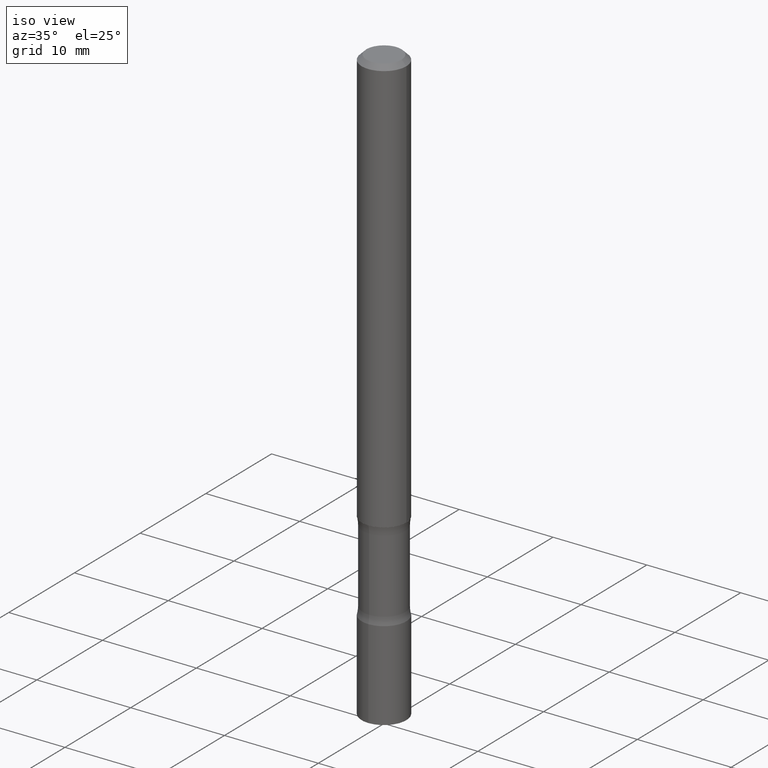
[diagram: clean part render]
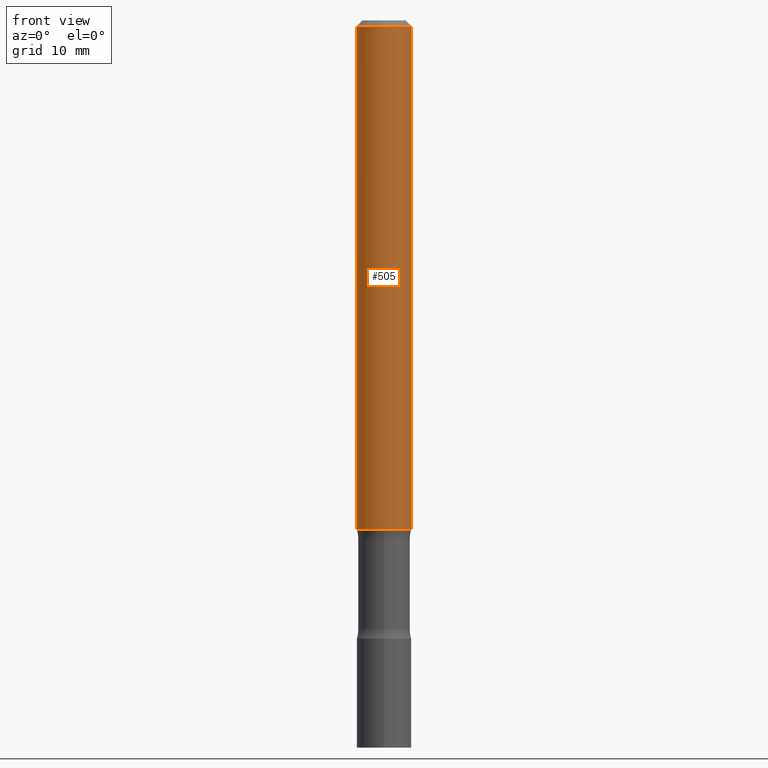
[diagram: tour spotlight — one face highlighted and labeled with its STEP entity id]
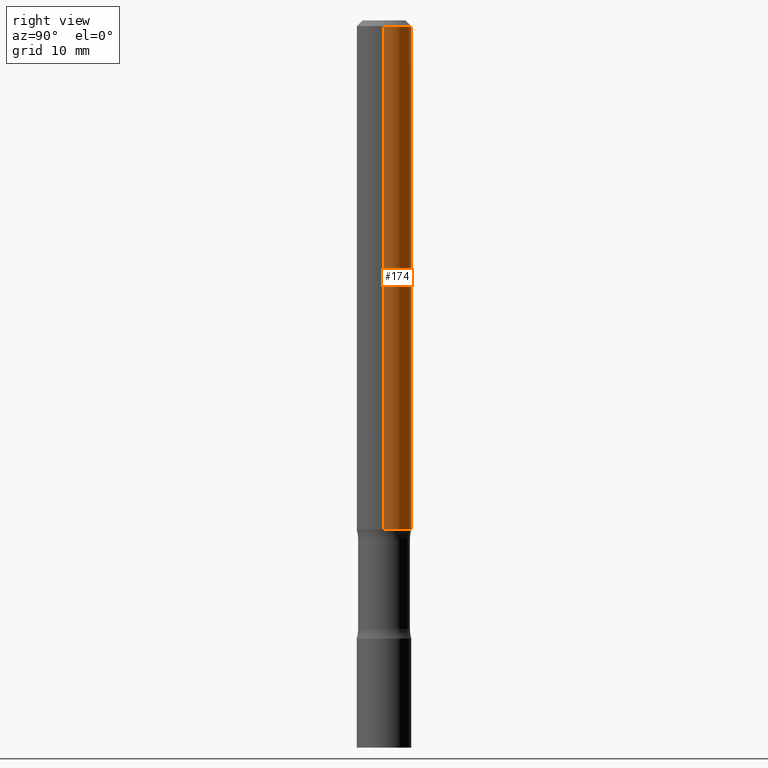
[diagram: tour spotlight — one face highlighted and labeled with its STEP entity id]
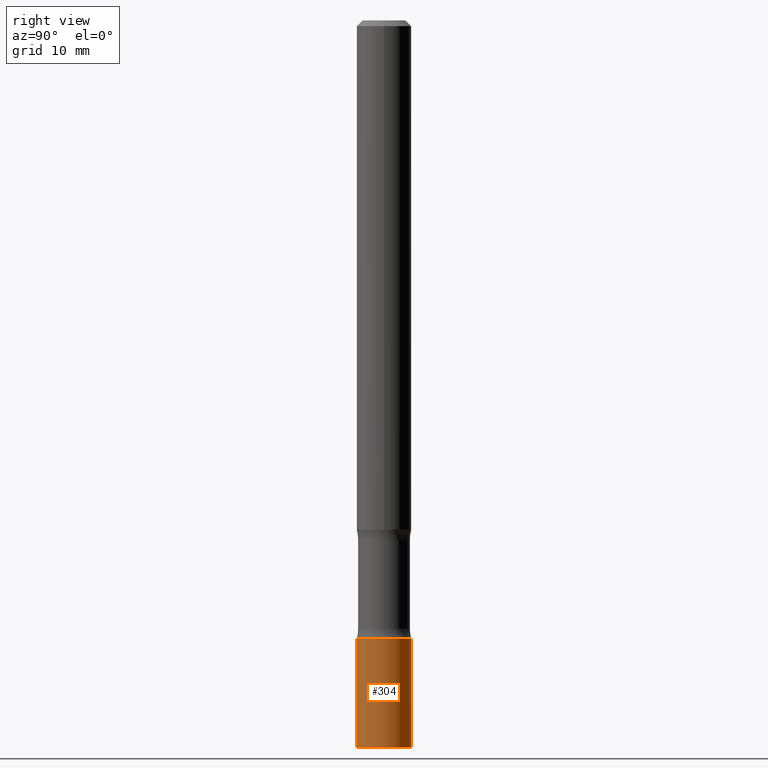
[diagram: tour spotlight — one face highlighted and labeled with its STEP entity id]
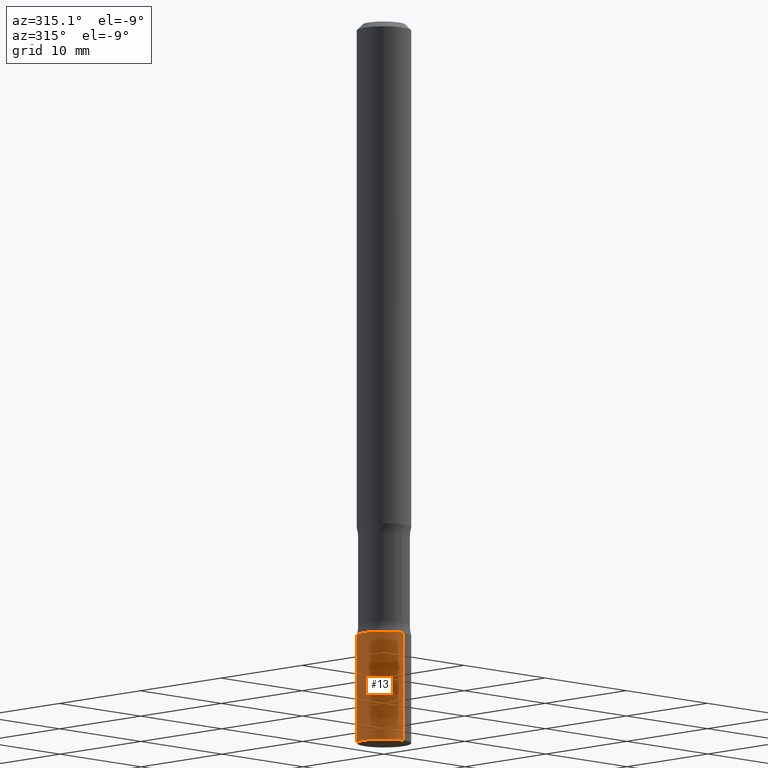
[diagram: tour spotlight — one face highlighted and labeled with its STEP entity id]
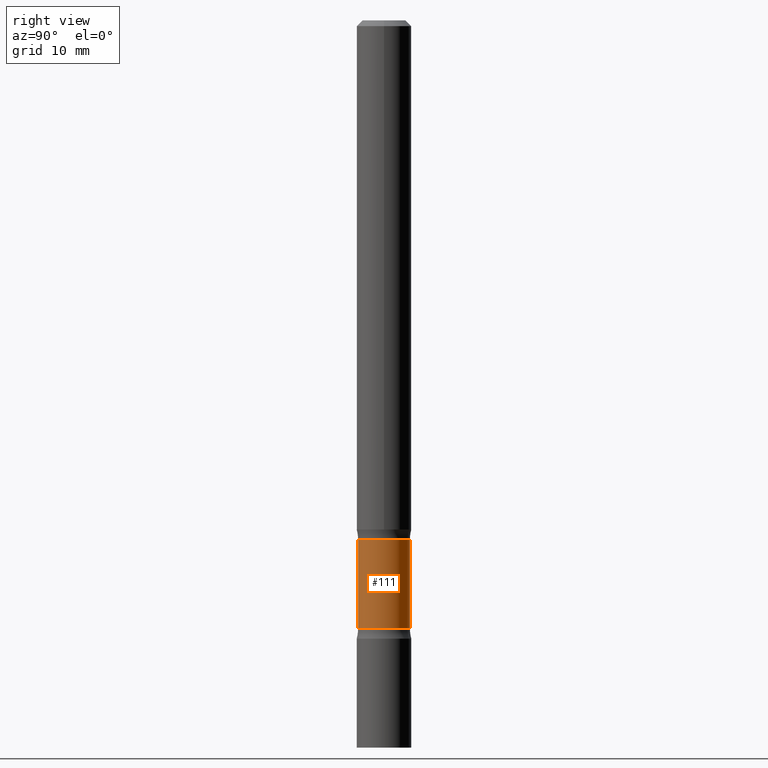
[diagram: tour spotlight — one face highlighted and labeled with its STEP entity id]
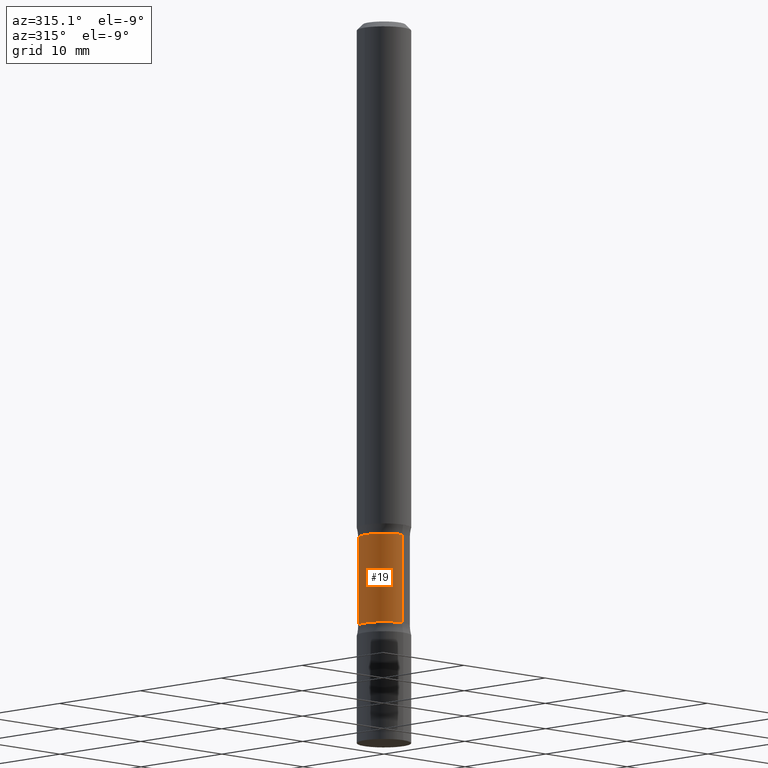
[diagram: tour spotlight — one face highlighted and labeled with its STEP entity id]
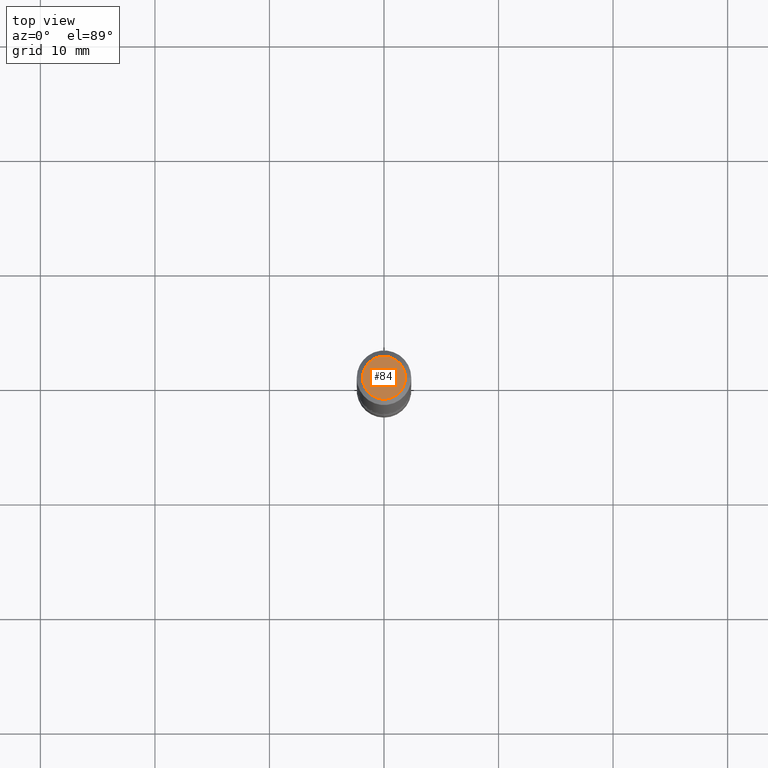
[diagram: tour spotlight — one face highlighted and labeled with its STEP entity id]
A machine part: a face-by-face anatomy tour. The part has 18 B-rep faces; the first image is the clean iso view, then the 7 largest visible faces are spotlighted one at a time (largest first), each with its STEP entity span.

Face 1 — front view, entity #505. In plain terms, the highlighted cylindrical surface (edge-blend (fillet) strip) has radius 2.3812 mm, axis along (-0, 0, 1).
Definition (entity closure, byte-faithful):
#40 = DIRECTION ( 'NONE',  ( 1.000000000000000000, -6.982962677686266711E-15, 0.000000000000000000 ) ) ;
#63 = VERTEX_POINT ( 'NONE', #481 ) ;
#72 = DIRECTION ( 'NONE',  ( -2.445468806185136597E-29, 3.491481338843145583E-15, 1.000000000000000000 ) ) ;
#76 = AXIS2_PLACEMENT_3D ( 'NONE', #502, #242, #40 ) ;
#113 = VECTOR ( 'NONE', #398, 39.37007874015748143 ) ;
#114 = CARTESIAN_POINT ( 'NONE',  ( 0.000000000000000000, 0.000000000000000000, 0.000000000000000000 ) ) ;
#124 = EDGE_CURVE ( 'NONE', #437, #256, #400, .T. ) ;
#129 = DIRECTION ( 'NONE',  ( -2.445468806185136597E-29, 3.491481338843145583E-15, 1.000000000000000000 ) ) ;
#150 = CARTESIAN_POINT ( 'NONE',  ( -0.09374999999999979183, 5.848231242562231212E-16, -0.02000000000000000042 ) ) ;
#172 = DIRECTION ( 'NONE',  ( 1.000000000000000000, -6.982962677686261189E-15, 0.000000000000000000 ) ) ;
#195 = DIRECTION ( 'NONE',  ( -2.445468806185136877E-29, 3.491481338843145188E-15, 1.000000000000000000 ) ) ;
#205 = CARTESIAN_POINT ( 'NONE',  ( 4.279570410823988484E-29, -6.110092342975504671E-15, -1.750000000000000000 ) ) ;
#222 = CIRCLE ( 'NONE', #401, 0.09375000000000001388 ) ;
#242 = DIRECTION ( 'NONE',  ( -2.445468806185136597E-29, 3.491481338843145583E-15, 1.000000000000000000 ) ) ;
#246 = EDGE_LOOP ( 'NONE', ( #296, #396, #360, #255 ) ) ;
#255 = ORIENTED_EDGE ( 'NONE', *, *, #340, .F. ) ;
#256 = VERTEX_POINT ( 'NONE', #150 ) ;
#264 = VERTEX_POINT ( 'NONE', #491 ) ;
#287 = CARTESIAN_POINT ( 'NONE',  ( 0.09374999999999988898, -6.546527510330866166E-16, 4.571415727308684201E-30 ) ) ;
#296 = ORIENTED_EDGE ( 'NONE', *, *, #124, .F. ) ;
#306 = AXIS2_PLACEMENT_3D ( 'NONE', #114, #72, #379 ) ;
#323 = LINE ( 'NONE', #287, #113 ) ;
#340 = EDGE_CURVE ( 'NONE', #256, #264, #462, .T. ) ;
#360 = ORIENTED_EDGE ( 'NONE', *, *, #377, .T. ) ;
#370 = EDGE_CURVE ( 'NONE', #437, #63, #222, .T. ) ;
#377 = EDGE_CURVE ( 'NONE', #63, #264, #323, .T. ) ;
#379 = DIRECTION ( 'NONE',  ( 1.000000000000000000, -6.982962677686265133E-15, 4.876176775795935793E-29 ) ) ;
#380 = CARTESIAN_POINT ( 'NONE',  ( -0.09374999999999988898, 6.661338147750931354E-16, -4.611501647113968390E-30 ) ) ;
#396 = ORIENTED_EDGE ( 'NONE', *, *, #370, .T. ) ;
#398 = DIRECTION ( 'NONE',  ( -2.445468806185136877E-29, 3.491481338843145188E-15, 1.000000000000000000 ) ) ;
#400 = LINE ( 'NONE', #380, #433 ) ;
#401 = AXIS2_PLACEMENT_3D ( 'NONE', #205, #129, #172 ) ;
#433 = VECTOR ( 'NONE', #195, 39.37007874015748143 ) ;
#437 = VERTEX_POINT ( 'NONE', #469 ) ;
#462 = CIRCLE ( 'NONE', #76, 0.09374999999999979183 ) ;
#463 = CYLINDRICAL_SURFACE ( 'NONE', #306, 0.09374999999999988898 ) ;
#469 = CARTESIAN_POINT ( 'NONE',  ( -0.09375000000000001388, -2.423827170101085722E-15, -1.750000000000000000 ) ) ;
#481 = CARTESIAN_POINT ( 'NONE',  ( 0.09375000000000001388, -6.764745094008591386E-15, -1.750000000000000000 ) ) ;
#491 = CARTESIAN_POINT ( 'NONE',  ( 0.09374999999999979183, -7.130013140679426072E-16, -0.02000000000000000042 ) ) ;
#497 = FACE_OUTER_BOUND ( 'NONE', #246, .T. ) ;
#502 = CARTESIAN_POINT ( 'NONE',  ( 4.890937612370273159E-31, -6.982962677686291609E-17, -0.02000000000000000042 ) ) ;
#505 = ADVANCED_FACE ( 'NONE', ( #497 ), #463, .T. ) ;

Face 2 — right view, entity #174. In plain terms, the highlighted cylindrical surface (edge-blend (fillet) strip) has radius 2.3812 mm, axis along (-0, 0, 1).
Definition (entity closure, byte-faithful):
#14 = DIRECTION ( 'NONE',  ( 1.000000000000000000, -6.982962677686261189E-15, 0.000000000000000000 ) ) ;
#16 = CARTESIAN_POINT ( 'NONE',  ( 4.279570410823988484E-29, -6.110092342975504671E-15, -1.750000000000000000 ) ) ;
#31 = CIRCLE ( 'NONE', #289, 0.09375000000000001388 ) ;
#53 = DIRECTION ( 'NONE',  ( -2.445468806185136597E-29, 3.491481338843145583E-15, 1.000000000000000000 ) ) ;
#63 = VERTEX_POINT ( 'NONE', #481 ) ;
#78 = EDGE_CURVE ( 'NONE', #63, #437, #31, .T. ) ;
#102 = CARTESIAN_POINT ( 'NONE',  ( 0.000000000000000000, 0.000000000000000000, 0.000000000000000000 ) ) ;
#113 = VECTOR ( 'NONE', #398, 39.37007874015748143 ) ;
#124 = EDGE_CURVE ( 'NONE', #437, #256, #400, .T. ) ;
#145 = ORIENTED_EDGE ( 'NONE', *, *, #124, .T. ) ;
#150 = CARTESIAN_POINT ( 'NONE',  ( -0.09374999999999979183, 5.848231242562231212E-16, -0.02000000000000000042 ) ) ;
#174 = ADVANCED_FACE ( 'NONE', ( #297 ), #371, .T. ) ;
#195 = DIRECTION ( 'NONE',  ( -2.445468806185136877E-29, 3.491481338843145188E-15, 1.000000000000000000 ) ) ;
#211 = AXIS2_PLACEMENT_3D ( 'NONE', #419, #339, #347 ) ;
#256 = VERTEX_POINT ( 'NONE', #150 ) ;
#264 = VERTEX_POINT ( 'NONE', #491 ) ;
#271 = DIRECTION ( 'NONE',  ( 1.000000000000000000, -6.982962677686265133E-15, 4.876176775795935793E-29 ) ) ;
#281 = CIRCLE ( 'NONE', #211, 0.09374999999999979183 ) ;
#287 = CARTESIAN_POINT ( 'NONE',  ( 0.09374999999999988898, -6.546527510330866166E-16, 4.571415727308684201E-30 ) ) ;
#289 = AXIS2_PLACEMENT_3D ( 'NONE', #16, #53, #14 ) ;
#294 = ORIENTED_EDGE ( 'NONE', *, *, #78, .T. ) ;
#297 = FACE_OUTER_BOUND ( 'NONE', #412, .T. ) ;
#302 = DIRECTION ( 'NONE',  ( -2.445468806185136597E-29, 3.491481338843145583E-15, 1.000000000000000000 ) ) ;
#323 = LINE ( 'NONE', #287, #113 ) ;
#339 = DIRECTION ( 'NONE',  ( -2.445468806185136597E-29, 3.491481338843145583E-15, 1.000000000000000000 ) ) ;
#347 = DIRECTION ( 'NONE',  ( 1.000000000000000000, -6.982962677686266711E-15, 0.000000000000000000 ) ) ;
#371 = CYLINDRICAL_SURFACE ( 'NONE', #476, 0.09374999999999988898 ) ;
#377 = EDGE_CURVE ( 'NONE', #63, #264, #323, .T. ) ;
#380 = CARTESIAN_POINT ( 'NONE',  ( -0.09374999999999988898, 6.661338147750931354E-16, -4.611501647113968390E-30 ) ) ;
#398 = DIRECTION ( 'NONE',  ( -2.445468806185136877E-29, 3.491481338843145188E-15, 1.000000000000000000 ) ) ;
#400 = LINE ( 'NONE', #380, #433 ) ;
#412 = EDGE_LOOP ( 'NONE', ( #294, #145, #456, #459 ) ) ;
#419 = CARTESIAN_POINT ( 'NONE',  ( 4.890937612370273159E-31, -6.982962677686291609E-17, -0.02000000000000000042 ) ) ;
#433 = VECTOR ( 'NONE', #195, 39.37007874015748143 ) ;
#437 = VERTEX_POINT ( 'NONE', #469 ) ;
#456 = ORIENTED_EDGE ( 'NONE', *, *, #493, .F. ) ;
#459 = ORIENTED_EDGE ( 'NONE', *, *, #377, .F. ) ;
#469 = CARTESIAN_POINT ( 'NONE',  ( -0.09375000000000001388, -2.423827170101085722E-15, -1.750000000000000000 ) ) ;
#476 = AXIS2_PLACEMENT_3D ( 'NONE', #102, #302, #271 ) ;
#481 = CARTESIAN_POINT ( 'NONE',  ( 0.09375000000000001388, -6.764745094008591386E-15, -1.750000000000000000 ) ) ;
#491 = CARTESIAN_POINT ( 'NONE',  ( 0.09374999999999979183, -7.130013140679426072E-16, -0.02000000000000000042 ) ) ;
#493 = EDGE_CURVE ( 'NONE', #264, #256, #281, .T. ) ;

Face 3 — right view, entity #304. In plain terms, the highlighted cylindrical surface (edge-blend (fillet) strip) has radius 2.3813 mm, axis along (-0, 0, 1).
Definition (entity closure, byte-faithful):
#5 = AXIS2_PLACEMENT_3D ( 'NONE', #372, #20, #189 ) ;
#20 = DIRECTION ( 'NONE',  ( -2.445335353247201709E-29, 3.491672451045937805E-15, 1.000000000000000000 ) ) ;
#27 = DIRECTION ( 'NONE',  ( -6.982962677686265922E-15, -1.000000000000000000, 2.913971193241880372E-15 ) ) ;
#30 = CARTESIAN_POINT ( 'NONE',  ( 6.661338147750938256E-16, 0.09375000000000001388, -3.273442922855567185E-16 ) ) ;
#48 = CIRCLE ( 'NONE', #425, 0.09375000000000001388 ) ;
#56 = VECTOR ( 'NONE', #427, 39.37007874015748143 ) ;
#58 = VERTEX_POINT ( 'NONE', #329 ) ;
#62 = CARTESIAN_POINT ( 'NONE',  ( 5.196337625650303527E-29, -7.419803958472619019E-15, -2.125000000000000000 ) ) ;
#82 = AXIS2_PLACEMENT_3D ( 'NONE', #62, #110, #27 ) ;
#83 = CARTESIAN_POINT ( 'NONE',  ( -6.546527510330875041E-16, -0.09375000000000001388, 3.273442922855567185E-16 ) ) ;
#85 = ORIENTED_EDGE ( 'NONE', *, *, #308, .F. ) ;
#110 = DIRECTION ( 'NONE',  ( -2.445335353247201709E-29, 3.491672451045937805E-15, 1.000000000000000000 ) ) ;
#127 = VERTEX_POINT ( 'NONE', #341 ) ;
#130 = VERTEX_POINT ( 'NONE', #498 ) ;
#133 = EDGE_CURVE ( 'NONE', #325, #130, #458, .T. ) ;
#144 = DIRECTION ( 'NONE',  ( -2.445335353247201709E-29, 3.491672451045938200E-15, 1.000000000000000000 ) ) ;
#147 = DIRECTION ( 'NONE',  ( -2.445335353247201709E-29, 3.491672451045937805E-15, 1.000000000000000000 ) ) ;
#180 = VECTOR ( 'NONE', #144, 39.37007874015748143 ) ;
#189 = DIRECTION ( 'NONE',  ( -6.982962677686265922E-15, -1.000000000000000000, 3.491672451045937805E-15 ) ) ;
#226 = FACE_OUTER_BOUND ( 'NONE', #290, .T. ) ;
#229 = CIRCLE ( 'NONE', #82, 0.09375000000000001388 ) ;
#276 = EDGE_CURVE ( 'NONE', #58, #325, #48, .T. ) ;
#290 = EDGE_LOOP ( 'NONE', ( #484, #490, #448, #85 ) ) ;
#292 = EDGE_CURVE ( 'NONE', #127, #130, #229, .T. ) ;
#300 = DIRECTION ( 'NONE',  ( -6.982962677686265922E-15, -1.000000000000000000, 5.827942386483760744E-15 ) ) ;
#304 = ADVANCED_FACE ( 'NONE', ( #226 ), #494, .T. ) ;
#308 = EDGE_CURVE ( 'NONE', #58, #127, #316, .T. ) ;
#316 = LINE ( 'NONE', #83, #56 ) ;
#325 = VERTEX_POINT ( 'NONE', #471 ) ;
#329 = CARTESIAN_POINT ( 'NONE',  ( -6.546527510330263674E-16, -0.09375000000000872913, -2.499999999999999556 ) ) ;
#341 = CARTESIAN_POINT ( 'NONE',  ( -6.546527510330356365E-16, -0.09375000000000743849, -2.125000000000000000 ) ) ;
#372 = CARTESIAN_POINT ( 'NONE',  ( 0.000000000000000000, 0.000000000000000000, 0.000000000000000000 ) ) ;
#425 = AXIS2_PLACEMENT_3D ( 'NONE', #492, #147, #300 ) ;
#427 = DIRECTION ( 'NONE',  ( -2.445335353247201709E-29, 3.491672451045938200E-15, 1.000000000000000000 ) ) ;
#448 = ORIENTED_EDGE ( 'NONE', *, *, #292, .F. ) ;
#458 = LINE ( 'NONE', #30, #180 ) ;
#471 = CARTESIAN_POINT ( 'NONE',  ( 6.661338147751504264E-16, 0.09374999999999128475, -2.500000000000000444 ) ) ;
#484 = ORIENTED_EDGE ( 'NONE', *, *, #276, .T. ) ;
#490 = ORIENTED_EDGE ( 'NONE', *, *, #133, .T. ) ;
#492 = CARTESIAN_POINT ( 'NONE',  ( 6.113338383118004413E-29, -8.729181127614846091E-15, -2.500000000000000000 ) ) ;
#494 = CYLINDRICAL_SURFACE ( 'NONE', #5, 0.09375000000000001388 ) ;
#498 = CARTESIAN_POINT ( 'NONE',  ( 6.661338147751549624E-16, 0.09374999999999257538, -2.125000000000000444 ) ) ;

Face 4 — auxiliary view, entity #13. In plain terms, the highlighted cylindrical surface (edge-blend (fillet) strip) has radius 2.3813 mm, axis along (-0, 0, 1).
Definition (entity closure, byte-faithful):
#4 = CIRCLE ( 'NONE', #356, 0.09375000000000001388 ) ;
#13 = ADVANCED_FACE ( 'NONE', ( #403 ), #407, .T. ) ;
#21 = AXIS2_PLACEMENT_3D ( 'NONE', #260, #97, #251 ) ;
#25 = CARTESIAN_POINT ( 'NONE',  ( 5.196337625650303527E-29, -7.419803958472619019E-15, -2.125000000000000000 ) ) ;
#30 = CARTESIAN_POINT ( 'NONE',  ( 6.661338147750938256E-16, 0.09375000000000001388, -3.273442922855567185E-16 ) ) ;
#52 = ORIENTED_EDGE ( 'NONE', *, *, #133, .F. ) ;
#56 = VECTOR ( 'NONE', #427, 39.37007874015748143 ) ;
#58 = VERTEX_POINT ( 'NONE', #329 ) ;
#70 = DIRECTION ( 'NONE',  ( -2.445335353247201709E-29, 3.491672451045937805E-15, 1.000000000000000000 ) ) ;
#79 = DIRECTION ( 'NONE',  ( -2.445335353247201709E-29, 3.491672451045937805E-15, 1.000000000000000000 ) ) ;
#83 = CARTESIAN_POINT ( 'NONE',  ( -6.546527510330875041E-16, -0.09375000000000001388, 3.273442922855567185E-16 ) ) ;
#97 = DIRECTION ( 'NONE',  ( -2.445335353247201709E-29, 3.491672451045937805E-15, 1.000000000000000000 ) ) ;
#100 = ORIENTED_EDGE ( 'NONE', *, *, #308, .T. ) ;
#127 = VERTEX_POINT ( 'NONE', #341 ) ;
#130 = VERTEX_POINT ( 'NONE', #498 ) ;
#133 = EDGE_CURVE ( 'NONE', #325, #130, #458, .T. ) ;
#144 = DIRECTION ( 'NONE',  ( -2.445335353247201709E-29, 3.491672451045938200E-15, 1.000000000000000000 ) ) ;
#148 = DIRECTION ( 'NONE',  ( -6.982962677686265922E-15, -1.000000000000000000, 2.913971193241880372E-15 ) ) ;
#180 = VECTOR ( 'NONE', #144, 39.37007874015748143 ) ;
#197 = AXIS2_PLACEMENT_3D ( 'NONE', #387, #79, #240 ) ;
#219 = ORIENTED_EDGE ( 'NONE', *, *, #274, .F. ) ;
#240 = DIRECTION ( 'NONE',  ( -6.982962677686265922E-15, -1.000000000000000000, 5.827942386483760744E-15 ) ) ;
#251 = DIRECTION ( 'NONE',  ( -6.982962677686265922E-15, -1.000000000000000000, 3.491672451045937805E-15 ) ) ;
#260 = CARTESIAN_POINT ( 'NONE',  ( 0.000000000000000000, 0.000000000000000000, 0.000000000000000000 ) ) ;
#274 = EDGE_CURVE ( 'NONE', #130, #127, #4, .T. ) ;
#308 = EDGE_CURVE ( 'NONE', #58, #127, #316, .T. ) ;
#316 = LINE ( 'NONE', #83, #56 ) ;
#324 = EDGE_LOOP ( 'NONE', ( #52, #485, #100, #219 ) ) ;
#325 = VERTEX_POINT ( 'NONE', #471 ) ;
#329 = CARTESIAN_POINT ( 'NONE',  ( -6.546527510330263674E-16, -0.09375000000000872913, -2.499999999999999556 ) ) ;
#341 = CARTESIAN_POINT ( 'NONE',  ( -6.546527510330356365E-16, -0.09375000000000743849, -2.125000000000000000 ) ) ;
#356 = AXIS2_PLACEMENT_3D ( 'NONE', #25, #70, #148 ) ;
#387 = CARTESIAN_POINT ( 'NONE',  ( 6.113338383118004413E-29, -8.729181127614846091E-15, -2.500000000000000000 ) ) ;
#403 = FACE_OUTER_BOUND ( 'NONE', #324, .T. ) ;
#407 = CYLINDRICAL_SURFACE ( 'NONE', #21, 0.09375000000000001388 ) ;
#416 = EDGE_CURVE ( 'NONE', #325, #58, #501, .T. ) ;
#427 = DIRECTION ( 'NONE',  ( -2.445335353247201709E-29, 3.491672451045938200E-15, 1.000000000000000000 ) ) ;
#458 = LINE ( 'NONE', #30, #180 ) ;
#471 = CARTESIAN_POINT ( 'NONE',  ( 6.661338147751504264E-16, 0.09374999999999128475, -2.500000000000000444 ) ) ;
#485 = ORIENTED_EDGE ( 'NONE', *, *, #416, .T. ) ;
#498 = CARTESIAN_POINT ( 'NONE',  ( 6.661338147751549624E-16, 0.09374999999999257538, -2.125000000000000444 ) ) ;
#501 = CIRCLE ( 'NONE', #197, 0.09375000000000001388 ) ;

Face 5 — right view, entity #111. In plain terms, the highlighted cylindrical surface (edge-blend (fillet) strip) has radius 2.2622 mm, axis along (0, -0, -1).
Definition (entity closure, byte-faithful):
#8 = VERTEX_POINT ( 'NONE', #139 ) ;
#33 = LINE ( 'NONE', #348, #153 ) ;
#73 = CARTESIAN_POINT ( 'NONE',  ( 4.317335664542283686E-29, -6.293162484245211017E-15, -1.783910210022204401 ) ) ;
#106 = CARTESIAN_POINT ( 'NONE',  ( 5.108949665098794430E-29, -7.307796357737152502E-15, -2.091089789977795821 ) ) ;
#111 = ADVANCED_FACE ( 'NONE', ( #295 ), #179, .T. ) ;
#118 = DIRECTION ( 'NONE',  ( 2.577039791092079409E-29, -3.303064199901000035E-15, -1.000000000000000000 ) ) ;
#139 = CARTESIAN_POINT ( 'NONE',  ( -6.270923951087616950E-16, -0.08906250000000633105, -1.783910210022204179 ) ) ;
#140 = VERTEX_POINT ( 'NONE', #415 ) ;
#152 = DIRECTION ( 'NONE',  ( 2.577039791092079409E-29, -3.303064199901000429E-15, -1.000000000000000000 ) ) ;
#153 = VECTOR ( 'NONE', #118, 39.37007874015748143 ) ;
#177 = DIRECTION ( 'NONE',  ( 2.577039791092079409E-29, -3.303064199901000429E-15, -1.000000000000000000 ) ) ;
#178 = EDGE_LOOP ( 'NONE', ( #266, #438, #404, #364 ) ) ;
#179 = CYLINDRICAL_SURFACE ( 'NONE', #320, 0.08906250000000004441 ) ;
#190 = EDGE_CURVE ( 'NONE', #140, #8, #499, .T. ) ;
#203 = EDGE_CURVE ( 'NONE', #140, #285, #261, .T. ) ;
#208 = EDGE_CURVE ( 'NONE', #285, #362, #342, .T. ) ;
#228 = AXIS2_PLACEMENT_3D ( 'NONE', #73, #152, #331 ) ;
#233 = CARTESIAN_POINT ( 'NONE',  ( 6.219201134814949559E-16, 0.08906249999999139855, -2.500000000000000444 ) ) ;
#261 = LINE ( 'NONE', #233, #280 ) ;
#266 = ORIENTED_EDGE ( 'NONE', *, *, #190, .T. ) ;
#280 = VECTOR ( 'NONE', #376, 39.37007874015748143 ) ;
#285 = VERTEX_POINT ( 'NONE', #414 ) ;
#288 = DIRECTION ( 'NONE',  ( 6.982962677686265133E-15, 1.000000000000000000, -6.134676196298693444E-15 ) ) ;
#295 = FACE_OUTER_BOUND ( 'NONE', #178, .T. ) ;
#320 = AXIS2_PLACEMENT_3D ( 'NONE', #327, #177, #288 ) ;
#327 = CARTESIAN_POINT ( 'NONE',  ( 6.162727547309833585E-29, -8.658453033435494328E-15, -2.500000000000000000 ) ) ;
#331 = DIRECTION ( 'NONE',  ( 6.982962677686265133E-15, 1.000000000000000000, -3.067338098149347116E-15 ) ) ;
#338 = DIRECTION ( 'NONE',  ( 2.577039791092079409E-29, -3.303064199901000429E-15, -1.000000000000000000 ) ) ;
#342 = CIRCLE ( 'NONE', #506, 0.08906250000000008604 ) ;
#348 = CARTESIAN_POINT ( 'NONE',  ( -6.110131029264656761E-16, -0.08906250000000870415, -2.499999999999999556 ) ) ;
#350 = EDGE_CURVE ( 'NONE', #8, #362, #33, .T. ) ;
#362 = VERTEX_POINT ( 'NONE', #365 ) ;
#364 = ORIENTED_EDGE ( 'NONE', *, *, #203, .F. ) ;
#365 = CARTESIAN_POINT ( 'NONE',  ( -6.270923951087528204E-16, -0.08906250000000738576, -2.091089789977795821 ) ) ;
#376 = DIRECTION ( 'NONE',  ( 2.577039791092079409E-29, -3.303064199901000035E-15, -1.000000000000000000 ) ) ;
#404 = ORIENTED_EDGE ( 'NONE', *, *, #208, .F. ) ;
#411 = DIRECTION ( 'NONE',  ( 6.982962677686265133E-15, 1.000000000000000000, -3.067338098149345144E-15 ) ) ;
#414 = CARTESIAN_POINT ( 'NONE',  ( 6.219201134814847007E-16, 0.08906249999999277245, -2.091089789977796265 ) ) ;
#415 = CARTESIAN_POINT ( 'NONE',  ( 6.219201134814764177E-16, 0.08906249999999373002, -1.783910210022204623 ) ) ;
#438 = ORIENTED_EDGE ( 'NONE', *, *, #350, .T. ) ;
#499 = CIRCLE ( 'NONE', #228, 0.08906250000000003053 ) ;
#506 = AXIS2_PLACEMENT_3D ( 'NONE', #106, #338, #411 ) ;

Face 6 — auxiliary view, entity #19. In plain terms, the highlighted cylindrical surface (edge-blend (fillet) strip) has radius 2.2622 mm, axis along (0, -0, -1).
Definition (entity closure, byte-faithful):
#8 = VERTEX_POINT ( 'NONE', #139 ) ;
#19 = ADVANCED_FACE ( 'NONE', ( #50 ), #215, .T. ) ;
#23 = ORIENTED_EDGE ( 'NONE', *, *, #227, .T. ) ;
#33 = LINE ( 'NONE', #348, #153 ) ;
#37 = AXIS2_PLACEMENT_3D ( 'NONE', #257, #57, #395 ) ;
#50 = FACE_OUTER_BOUND ( 'NONE', #216, .T. ) ;
#57 = DIRECTION ( 'NONE',  ( 2.577039791092079409E-29, -3.303064199901000429E-15, -1.000000000000000000 ) ) ;
#59 = DIRECTION ( 'NONE',  ( 2.577039791092079409E-29, -3.303064199901000429E-15, -1.000000000000000000 ) ) ;
#118 = DIRECTION ( 'NONE',  ( 2.577039791092079409E-29, -3.303064199901000035E-15, -1.000000000000000000 ) ) ;
#139 = CARTESIAN_POINT ( 'NONE',  ( -6.270923951087616950E-16, -0.08906250000000633105, -1.783910210022204179 ) ) ;
#140 = VERTEX_POINT ( 'NONE', #415 ) ;
#153 = VECTOR ( 'NONE', #118, 39.37007874015748143 ) ;
#155 = DIRECTION ( 'NONE',  ( 2.577039791092079409E-29, -3.303064199901000429E-15, -1.000000000000000000 ) ) ;
#169 = CIRCLE ( 'NONE', #453, 0.08906250000000003053 ) ;
#181 = CIRCLE ( 'NONE', #344, 0.08906250000000008604 ) ;
#196 = CARTESIAN_POINT ( 'NONE',  ( 5.108949665098794430E-29, -7.307796357737152502E-15, -2.091089789977795821 ) ) ;
#203 = EDGE_CURVE ( 'NONE', #140, #285, #261, .T. ) ;
#204 = DIRECTION ( 'NONE',  ( 6.982962677686265133E-15, 1.000000000000000000, -3.067338098149345144E-15 ) ) ;
#210 = ORIENTED_EDGE ( 'NONE', *, *, #350, .F. ) ;
#215 = CYLINDRICAL_SURFACE ( 'NONE', #37, 0.08906250000000004441 ) ;
#216 = EDGE_LOOP ( 'NONE', ( #210, #23, #225, #298 ) ) ;
#225 = ORIENTED_EDGE ( 'NONE', *, *, #203, .T. ) ;
#227 = EDGE_CURVE ( 'NONE', #8, #140, #169, .T. ) ;
#233 = CARTESIAN_POINT ( 'NONE',  ( 6.219201134814949559E-16, 0.08906249999999139855, -2.500000000000000444 ) ) ;
#257 = CARTESIAN_POINT ( 'NONE',  ( 6.162727547309833585E-29, -8.658453033435494328E-15, -2.500000000000000000 ) ) ;
#261 = LINE ( 'NONE', #233, #280 ) ;
#280 = VECTOR ( 'NONE', #376, 39.37007874015748143 ) ;
#285 = VERTEX_POINT ( 'NONE', #414 ) ;
#298 = ORIENTED_EDGE ( 'NONE', *, *, #326, .F. ) ;
#307 = DIRECTION ( 'NONE',  ( 6.982962677686265133E-15, 1.000000000000000000, -3.067338098149347116E-15 ) ) ;
#326 = EDGE_CURVE ( 'NONE', #362, #285, #181, .T. ) ;
#344 = AXIS2_PLACEMENT_3D ( 'NONE', #196, #155, #204 ) ;
#348 = CARTESIAN_POINT ( 'NONE',  ( -6.110131029264656761E-16, -0.08906250000000870415, -2.499999999999999556 ) ) ;
#350 = EDGE_CURVE ( 'NONE', #8, #362, #33, .T. ) ;
#362 = VERTEX_POINT ( 'NONE', #365 ) ;
#365 = CARTESIAN_POINT ( 'NONE',  ( -6.270923951087528204E-16, -0.08906250000000738576, -2.091089789977795821 ) ) ;
#376 = DIRECTION ( 'NONE',  ( 2.577039791092079409E-29, -3.303064199901000035E-15, -1.000000000000000000 ) ) ;
#395 = DIRECTION ( 'NONE',  ( 6.982962677686265133E-15, 1.000000000000000000, -6.134676196298693444E-15 ) ) ;
#414 = CARTESIAN_POINT ( 'NONE',  ( 6.219201134814847007E-16, 0.08906249999999277245, -2.091089789977796265 ) ) ;
#415 = CARTESIAN_POINT ( 'NONE',  ( 6.219201134814764177E-16, 0.08906249999999373002, -1.783910210022204623 ) ) ;
#453 = AXIS2_PLACEMENT_3D ( 'NONE', #464, #59, #307 ) ;
#464 = CARTESIAN_POINT ( 'NONE',  ( 4.317335664542283686E-29, -6.293162484245211017E-15, -1.783910210022204401 ) ) ;

Face 7 — top view, entity #84. In plain terms, the highlighted planar face has unit normal (0, -0, -1).
Definition (entity closure, byte-faithful):
#6 = FACE_OUTER_BOUND ( 'NONE', #46, .T. ) ;
#12 = DIRECTION ( 'NONE',  ( -1.000000000000000000, 6.982962677686265922E-15, -4.876176775795935793E-29 ) ) ;
#18 = DIRECTION ( 'NONE',  ( 1.000000000000000000, -6.982962677686266711E-15, 4.876176775795935793E-29 ) ) ;
#46 = EDGE_LOOP ( 'NONE', ( #131, #96 ) ) ;
#55 = CIRCLE ( 'NONE', #381, 0.07374999999999982958 ) ;
#61 = VERTEX_POINT ( 'NONE', #405 ) ;
#84 = ADVANCED_FACE ( 'NONE', ( #6 ), #185, .F. ) ;
#96 = ORIENTED_EDGE ( 'NONE', *, *, #217, .T. ) ;
#112 = AXIS2_PLACEMENT_3D ( 'NONE', #478, #283, #12 ) ;
#131 = ORIENTED_EDGE ( 'NONE', *, *, #421, .T. ) ;
#183 = VERTEX_POINT ( 'NONE', #269 ) ;
#185 = PLANE ( 'NONE',  #112 ) ;
#217 = EDGE_CURVE ( 'NONE', #61, #183, #55, .T. ) ;
#235 = DIRECTION ( 'NONE',  ( -2.445468806185136597E-29, 3.491481338843145583E-15, 1.000000000000000000 ) ) ;
#239 = AXIS2_PLACEMENT_3D ( 'NONE', #303, #460, #382 ) ;
#269 = CARTESIAN_POINT ( 'NONE',  ( -0.07374999999999982958, 5.499083108677920638E-16, -3.723527850031185562E-30 ) ) ;
#283 = DIRECTION ( 'NONE',  ( 2.438088387897960049E-29, -3.491481338843145188E-15, -1.000000000000000000 ) ) ;
#303 = CARTESIAN_POINT ( 'NONE',  ( 0.000000000000000000, 0.000000000000000000, 0.000000000000000000 ) ) ;
#335 = CIRCLE ( 'NONE', #239, 0.07374999999999982958 ) ;
#381 = AXIS2_PLACEMENT_3D ( 'NONE', #461, #235, #18 ) ;
#382 = DIRECTION ( 'NONE',  ( 1.000000000000000000, -6.982962677686266711E-15, 4.876176775795935793E-29 ) ) ;
#405 = CARTESIAN_POINT ( 'NONE',  ( 0.07374999999999982958, -6.094815207017959226E-16, 3.931526600461596647E-30 ) ) ;
#421 = EDGE_CURVE ( 'NONE', #183, #61, #335, .T. ) ;
#460 = DIRECTION ( 'NONE',  ( -2.445468806185136597E-29, 3.491481338843145583E-15, 1.000000000000000000 ) ) ;
#461 = CARTESIAN_POINT ( 'NONE',  ( 0.000000000000000000, 0.000000000000000000, 0.000000000000000000 ) ) ;
#478 = CARTESIAN_POINT ( 'NONE',  ( 5.149934974793609077E-16, 0.07374999999999982958, -2.574967487396813906E-16 ) ) ;